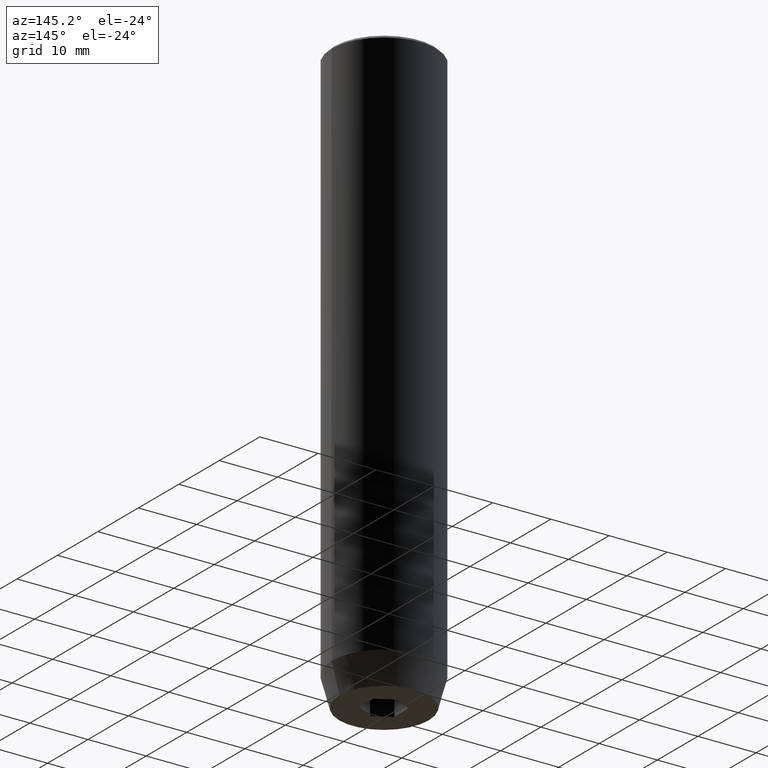
[diagram: clean part render]
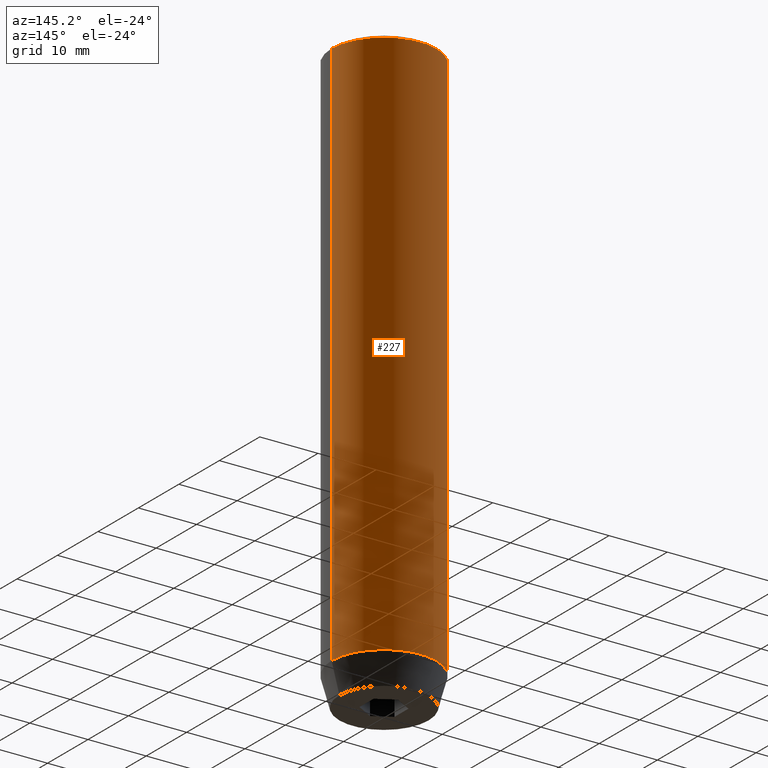
[diagram: same view with one face highlighted and labeled with its STEP entity id]
A machine part, auxiliary view. The second image highlights one B-rep face of the part: STEP entity #227.
In plain terms, the highlighted cylindrical surface (partial cylindrical patch) has radius 9 mm, axis along (-0, -0, 1).
Its self-contained STEP definition (entity closure, byte-faithful):
#9 = CARTESIAN_POINT ( 'NONE',  ( -9.000000000000000000, 1.102182119232617714E-15, 0.000000000000000000 ) ) ;
#17 = DIRECTION ( 'NONE',  ( -0.000000000000000000, -0.000000000000000000, 1.000000000000000000 ) ) ;
#32 = DIRECTION ( 'NONE',  ( -0.000000000000000000, -0.000000000000000000, 1.000000000000000000 ) ) ;
#34 = AXIS2_PLACEMENT_3D ( 'NONE', #142, #242, #197 ) ;
#61 = CARTESIAN_POINT ( 'NONE',  ( 0.000000000000000000, 0.000000000000000000, 0.000000000000000000 ) ) ;
#64 = VERTEX_POINT ( 'NONE', #316 ) ;
#68 = CIRCLE ( 'NONE', #637, 9.000000000000000000 ) ;
#116 = EDGE_CURVE ( 'NONE', #360, #413, #68, .T. ) ;
#142 = CARTESIAN_POINT ( 'NONE',  ( 0.000000000000000000, 0.000000000000000000, -0.5000000000000091038 ) ) ;
#171 = VECTOR ( 'NONE', #246, 1000.000000000000000 ) ;
#197 = DIRECTION ( 'NONE',  ( 1.000000000000000000, 0.000000000000000000, 0.000000000000000000 ) ) ;
#227 = ADVANCED_FACE ( 'NONE', ( #543 ), #382, .T. ) ;
#240 = DIRECTION ( 'NONE',  ( -0.000000000000000000, -0.000000000000000000, 1.000000000000000000 ) ) ;
#242 = DIRECTION ( 'NONE',  ( 0.000000000000000000, 0.000000000000000000, -1.000000000000000000 ) ) ;
#246 = DIRECTION ( 'NONE',  ( -0.000000000000000000, -0.000000000000000000, 1.000000000000000000 ) ) ;
#259 = EDGE_LOOP ( 'NONE', ( #421, #438, #364, #281 ) ) ;
#281 = ORIENTED_EDGE ( 'NONE', *, *, #475, .F. ) ;
#298 = VERTEX_POINT ( 'NONE', #531 ) ;
#316 = CARTESIAN_POINT ( 'NONE',  ( -9.000000000000000000, 1.102182119232617714E-15, -0.5000000000000091038 ) ) ;
#331 = EDGE_CURVE ( 'NONE', #413, #64, #528, .T. ) ;
#344 = DIRECTION ( 'NONE',  ( 1.000000000000000000, 0.000000000000000000, 0.000000000000000000 ) ) ;
#360 = VERTEX_POINT ( 'NONE', #508 ) ;
#364 = ORIENTED_EDGE ( 'NONE', *, *, #401, .T. ) ;
#382 = CYLINDRICAL_SURFACE ( 'NONE', #406, 9.000000000000000000 ) ;
#397 = CIRCLE ( 'NONE', #34, 9.000000000000000000 ) ;
#401 = EDGE_CURVE ( 'NONE', #64, #298, #397, .T. ) ;
#406 = AXIS2_PLACEMENT_3D ( 'NONE', #61, #17, #344 ) ;
#413 = VERTEX_POINT ( 'NONE', #422 ) ;
#421 = ORIENTED_EDGE ( 'NONE', *, *, #116, .T. ) ;
#422 = CARTESIAN_POINT ( 'NONE',  ( -9.000000000000000000, 1.102182119232617714E-15, -95.00000000000000000 ) ) ;
#438 = ORIENTED_EDGE ( 'NONE', *, *, #331, .T. ) ;
#465 = DIRECTION ( 'NONE',  ( 1.000000000000000000, 0.000000000000000000, 0.000000000000000000 ) ) ;
#475 = EDGE_CURVE ( 'NONE', #360, #298, #578, .T. ) ;
#476 = VECTOR ( 'NONE', #240, 1000.000000000000000 ) ;
#508 = CARTESIAN_POINT ( 'NONE',  ( 9.000000000000000000, 0.000000000000000000, -95.00000000000000000 ) ) ;
#517 = CARTESIAN_POINT ( 'NONE',  ( 0.000000000000000000, 0.000000000000000000, -95.00000000000000000 ) ) ;
#528 = LINE ( 'NONE', #9, #171 ) ;
#531 = CARTESIAN_POINT ( 'NONE',  ( 9.000000000000000000, 0.000000000000000000, -0.5000000000000091038 ) ) ;
#543 = FACE_OUTER_BOUND ( 'NONE', #259, .T. ) ;
#570 = CARTESIAN_POINT ( 'NONE',  ( 9.000000000000000000, 0.000000000000000000, 0.000000000000000000 ) ) ;
#578 = LINE ( 'NONE', #570, #476 ) ;
#637 = AXIS2_PLACEMENT_3D ( 'NONE', #517, #32, #465 ) ;